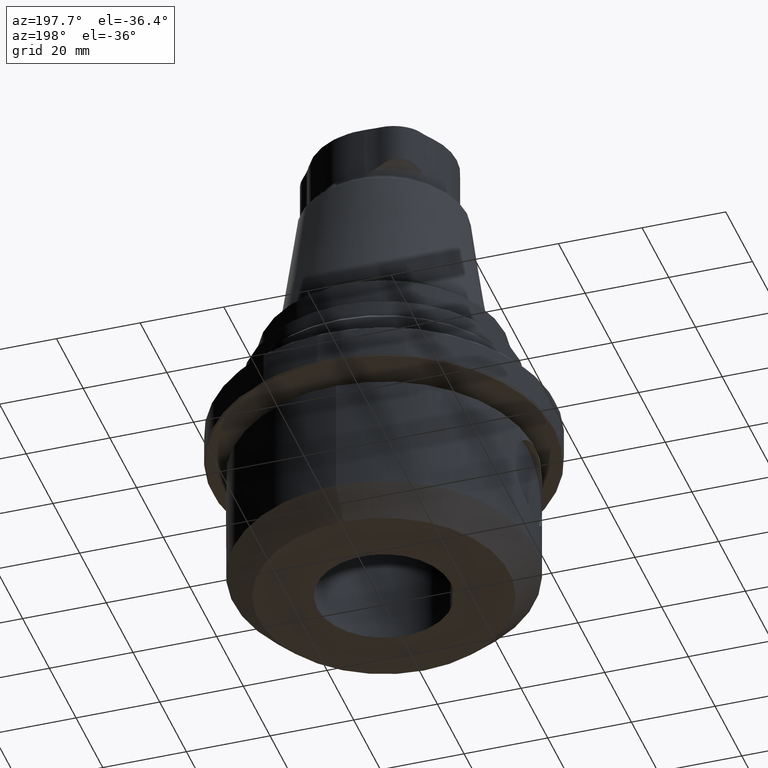
[diagram: clean part render]
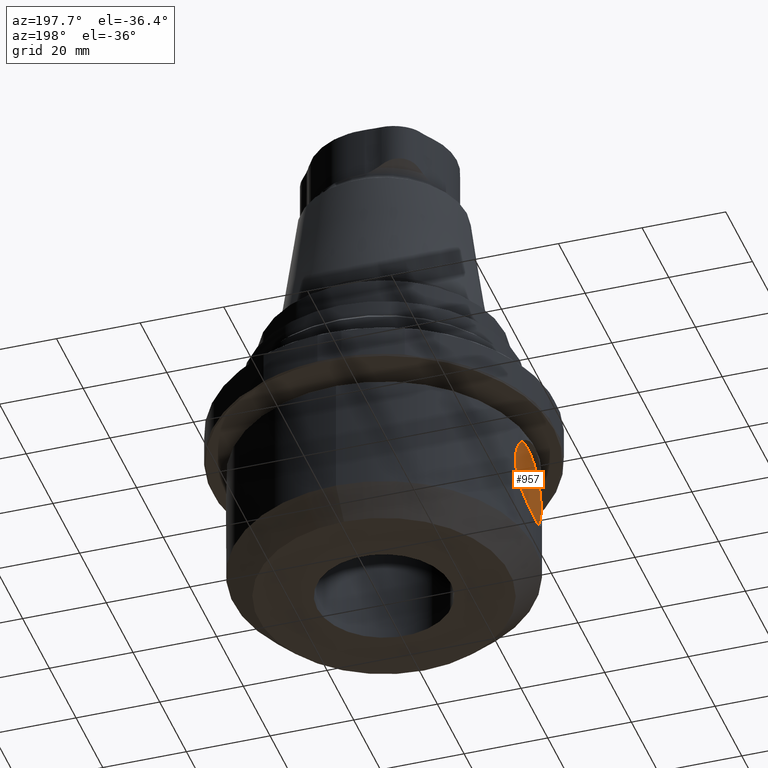
[diagram: same view with one face highlighted and labeled with its STEP entity id]
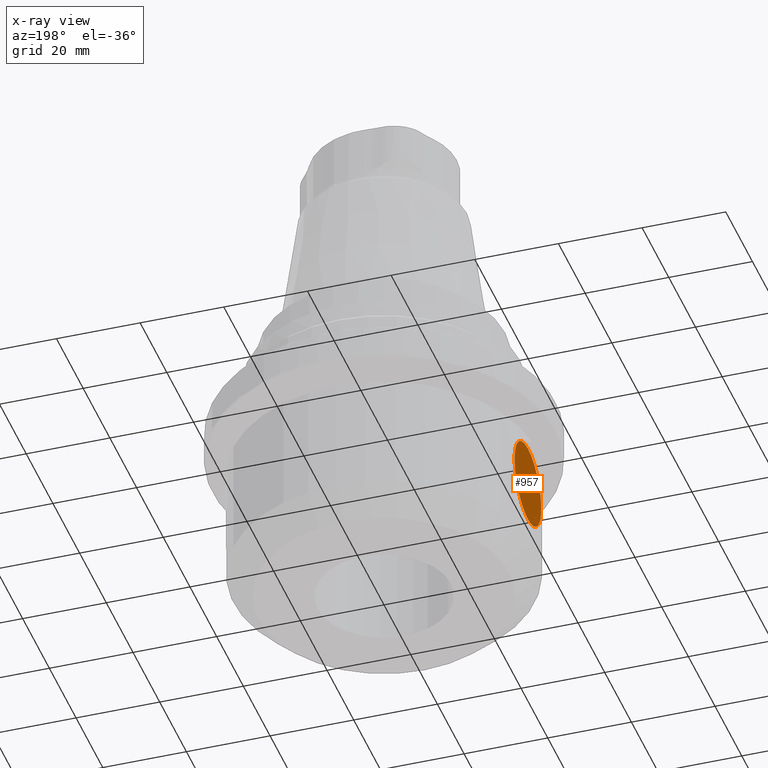
[diagram: x-ray of the same camera — body ghosted, the highlighted face saturated]
A machine part, auxiliary view. The second image highlights one B-rep face of the part: STEP entity #957.
The next image is the same camera in x-ray: the body ghosted, the highlighted face saturated — about 0% of this face is hidden behind the body in this view.
In plain terms, the highlighted planar face has unit normal (1, 0, 0).
Its self-contained STEP definition (entity closure, byte-faithful):
#111=PLANE('',#1087);
#165=CIRCLE('',#1088,10.0004999999999);
#409=ORIENTED_EDGE('',*,*,#537,.F.);
#537=EDGE_CURVE('',#630,#630,#165,.T.);
#630=VERTEX_POINT('',#1818);
#765=EDGE_LOOP('',(#409));
#862=FACE_BOUND('',#765,.T.);
#957=ADVANCED_FACE('',(#862),#111,.F.);
#1087=AXIS2_PLACEMENT_3D('',#1816,#1349,#1350);
#1088=AXIS2_PLACEMENT_3D('',#1817,#1351,#1352);
#1349=DIRECTION('',(1.,0.,0.));
#1350=DIRECTION('',(0.,0.,-1.));
#1351=DIRECTION('',(1.,0.,0.));
#1352=DIRECTION('',(0.,0.,-1.));
#1816=CARTESIAN_POINT('',(-34.4,0.,-23.));
#1817=CARTESIAN_POINT('',(-34.4,0.,-23.));
#1818=CARTESIAN_POINT('',(-34.4,0.,-33.0004999999999));